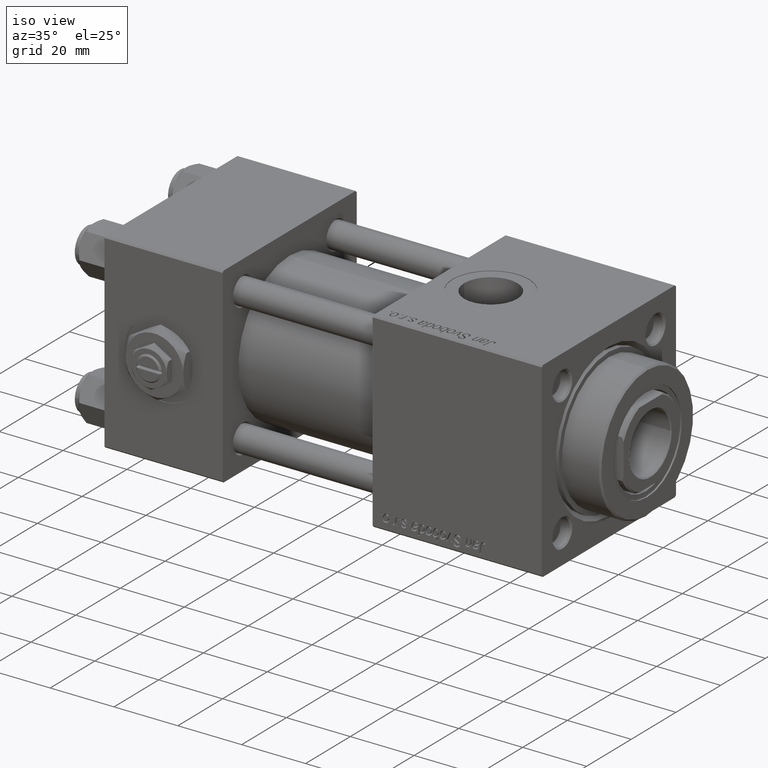
[diagram: clean part render]
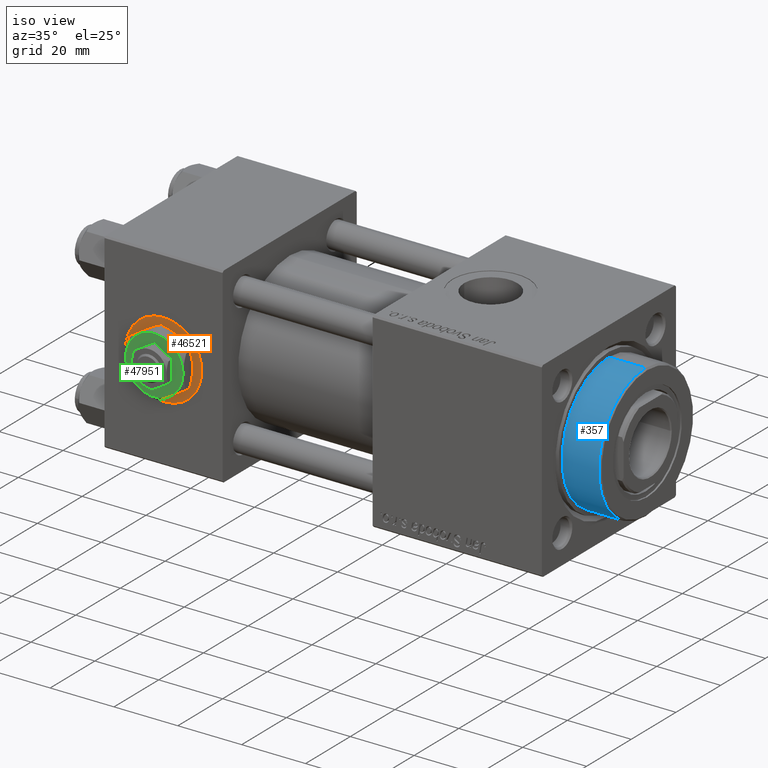
[diagram: same view with three faces highlighted in distinct colors, each labeled with its STEP entity id]
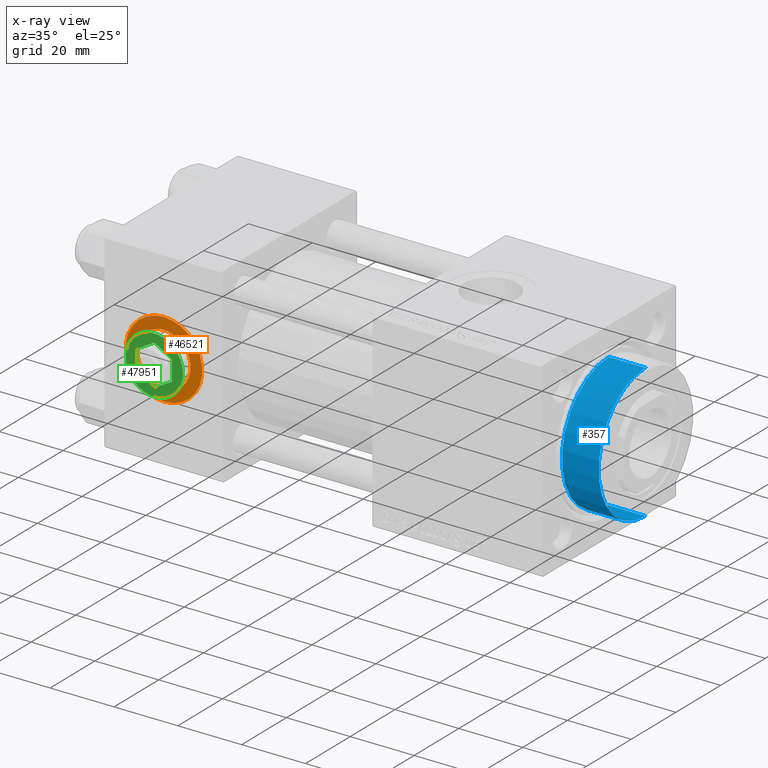
[diagram: x-ray of the same camera — body ghosted, the three highlighted faces saturated]
A machine part, iso view with three faces highlighted in distinct colors.
The next image is the same camera in x-ray (body ghosted, the three faces saturated) — at least one of them is partly hidden behind the body in this view.
Their STEP definitions:

[orange] entity #46521 — the highlighted planar face has unit normal (0, -1, -0).
#2183 = CARTESIAN_POINT ( 'NONE',  ( 18.50000000000000000, -29.80000000000000071, 12.00000000000000178 ) ) ;
#2343 = DIRECTION ( 'NONE',  ( 0.000000000000000000, -1.000000000000000000, -8.673617379884036705E-17 ) ) ;
#3636 = VERTEX_POINT ( 'NONE', #2183 ) ;
#4074 = EDGE_CURVE ( 'NONE', #5198, #20971, #39142, .T. ) ;
#4298 = CARTESIAN_POINT ( 'NONE',  ( 18.50000000000000000, -29.80000000000000071, 1.734723475976807403E-17 ) ) ;
#4661 = DIRECTION ( 'NONE',  ( 0.000000000000000000, -1.000000000000000000, -8.673617379884036705E-17 ) ) ;
#5198 = VERTEX_POINT ( 'NONE', #27272 ) ;
#5325 = DIRECTION ( 'NONE',  ( 0.000000000000000000, 0.000000000000000000, -1.000000000000000000 ) ) ;
#5901 = AXIS2_PLACEMENT_3D ( 'NONE', #52335, #2343, #20496 ) ;
#6946 = CARTESIAN_POINT ( 'NONE',  ( 18.50000000000000000, -29.80000000000000071, 8.330000000000001847 ) ) ;
#8747 = CIRCLE ( 'NONE', #38245, 12.00000000000000178 ) ;
#9145 = CARTESIAN_POINT ( 'NONE',  ( 18.50000000000000000, -29.80000000000000071, 1.734723475976807403E-17 ) ) ;
#9798 = CARTESIAN_POINT ( 'NONE',  ( 18.50000000000000000, -29.80000000000000071, 1.734723475976808635E-17 ) ) ;
#10018 = EDGE_CURVE ( 'NONE', #41739, #3636, #8747, .T. ) ;
#10966 = AXIS2_PLACEMENT_3D ( 'NONE', #4298, #44774, #16529 ) ;
#15568 = ORIENTED_EDGE ( 'NONE', *, *, #21841, .T. ) ;
#16529 = DIRECTION ( 'NONE',  ( 0.000000000000000000, 8.673617379884036705E-17, -1.000000000000000000 ) ) ;
#20496 = DIRECTION ( 'NONE',  ( 0.000000000000000000, 0.000000000000000000, -1.000000000000000000 ) ) ;
#20971 = VERTEX_POINT ( 'NONE', #6946 ) ;
#21841 = EDGE_CURVE ( 'NONE', #3636, #41739, #43682, .T. ) ;
#22394 = CARTESIAN_POINT ( 'NONE',  ( 18.50000000000000000, -29.80000000000000071, 1.734723475976807403E-17 ) ) ;
#22809 = DIRECTION ( 'NONE',  ( 0.000000000000000000, 0.000000000000000000, -1.000000000000000000 ) ) ;
#27272 = CARTESIAN_POINT ( 'NONE',  ( 18.50000000000000000, -29.80000000000000071, -8.330000000000001847 ) ) ;
#27925 = DIRECTION ( 'NONE',  ( 0.000000000000000000, -1.000000000000000000, -8.673617379884036705E-17 ) ) ;
#32594 = EDGE_CURVE ( 'NONE', #20971, #5198, #51491, .T. ) ;
#34947 = ORIENTED_EDGE ( 'NONE', *, *, #4074, .F. ) ;
#35676 = ORIENTED_EDGE ( 'NONE', *, *, #10018, .T. ) ;
#38245 = AXIS2_PLACEMENT_3D ( 'NONE', #9145, #4661, #22809 ) ;
#39142 = CIRCLE ( 'NONE', #41031, 8.330000000000001847 ) ;
#40539 = DIRECTION ( 'NONE',  ( 0.000000000000000000, 0.000000000000000000, -1.000000000000000000 ) ) ;
#40669 = EDGE_LOOP ( 'NONE', ( #34947, #53525 ) ) ;
#41031 = AXIS2_PLACEMENT_3D ( 'NONE', #9798, #27925, #5325 ) ;
#41739 = VERTEX_POINT ( 'NONE', #45503 ) ;
#43682 = CIRCLE ( 'NONE', #58890, 12.00000000000000178 ) ;
#44774 = DIRECTION ( 'NONE',  ( 0.000000000000000000, -1.000000000000000000, -8.673617379884036705E-17 ) ) ;
#45078 = PLANE ( 'NONE',  #10966 ) ;
#45503 = CARTESIAN_POINT ( 'NONE',  ( 18.50000000000000000, -29.80000000000000071, -12.00000000000000178 ) ) ;
#46521 = ADVANCED_FACE ( 'NONE', ( #53735, #52852 ), #45078, .T. ) ;
#51491 = CIRCLE ( 'NONE', #5901, 8.330000000000001847 ) ;
#52335 = CARTESIAN_POINT ( 'NONE',  ( 18.50000000000000000, -29.80000000000000071, 1.734723475976808635E-17 ) ) ;
#52852 = FACE_OUTER_BOUND ( 'NONE', #58063, .T. ) ;
#53525 = ORIENTED_EDGE ( 'NONE', *, *, #32594, .F. ) ;
#53735 = FACE_BOUND ( 'NONE', #40669, .T. ) ;
#54240 = DIRECTION ( 'NONE',  ( 0.000000000000000000, -1.000000000000000000, -8.673617379884036705E-17 ) ) ;
#58063 = EDGE_LOOP ( 'NONE', ( #35676, #15568 ) ) ;
#58890 = AXIS2_PLACEMENT_3D ( 'NONE', #22394, #54240, #40539 ) ;

[blue] entity #357 — the highlighted cylindrical surface (partial cylindrical patch) has radius 21 mm, axis along (-1, -0, 0).
#245 = ORIENTED_EDGE ( 'NONE', *, *, #14796, .T. ) ;
#357 = ADVANCED_FACE ( 'NONE', ( #14931 ), #50655, .T. ) ;
#682 = DIRECTION ( 'NONE',  ( 0.000000000000000000, 0.000000000000000000, -1.000000000000000000 ) ) ;
#5727 = AXIS2_PLACEMENT_3D ( 'NONE', #14082, #682, #9618 ) ;
#7028 = CIRCLE ( 'NONE', #36490, 21.00000000000000000 ) ;
#7980 = ORIENTED_EDGE ( 'NONE', *, *, #30977, .F. ) ;
#9618 = DIRECTION ( 'NONE',  ( 1.000000000000000000, 0.000000000000000000, 0.000000000000000000 ) ) ;
#10708 = CARTESIAN_POINT ( 'NONE',  ( -21.00000000000000000, 0.000000000000000000, 40.70000000000000284 ) ) ;
#14082 = CARTESIAN_POINT ( 'NONE',  ( 0.000000000000000000, 0.000000000000000000, 40.19999999999998863 ) ) ;
#14796 = EDGE_CURVE ( 'NONE', #30311, #44944, #7028, .T. ) ;
#14931 = FACE_OUTER_BOUND ( 'NONE', #44008, .T. ) ;
#15908 = VERTEX_POINT ( 'NONE', #52906 ) ;
#16296 = CARTESIAN_POINT ( 'NONE',  ( -21.00000000000000000, 0.000000000000000000, 28.69999999999999929 ) ) ;
#16764 = ORIENTED_EDGE ( 'NONE', *, *, #56652, .T. ) ;
#17246 = VECTOR ( 'NONE', #17963, 1000.000000000000000 ) ;
#17963 = DIRECTION ( 'NONE',  ( -0.000000000000000000, -0.000000000000000000, -1.000000000000000000 ) ) ;
#19218 = VECTOR ( 'NONE', #51478, 1000.000000000000000 ) ;
#22430 = CARTESIAN_POINT ( 'NONE',  ( 21.00000000000000000, 2.571758278209441661E-15, 40.70000000000000284 ) ) ;
#22748 = CARTESIAN_POINT ( 'NONE',  ( 21.00000000000000000, 2.571758278209441661E-15, 28.69999999999999929 ) ) ;
#23501 = LINE ( 'NONE', #10708, #19218 ) ;
#27281 = VERTEX_POINT ( 'NONE', #52526 ) ;
#28671 = EDGE_CURVE ( 'NONE', #27281, #15908, #57121, .T. ) ;
#30311 = VERTEX_POINT ( 'NONE', #16296 ) ;
#30977 = EDGE_CURVE ( 'NONE', #27281, #44944, #35538, .T. ) ;
#35538 = LINE ( 'NONE', #22430, #17246 ) ;
#36490 = AXIS2_PLACEMENT_3D ( 'NONE', #36762, #50450, #57730 ) ;
#36762 = CARTESIAN_POINT ( 'NONE',  ( 0.000000000000000000, 0.000000000000000000, 28.69999999999999929 ) ) ;
#38147 = DIRECTION ( 'NONE',  ( -0.000000000000000000, -0.000000000000000000, -1.000000000000000000 ) ) ;
#42318 = DIRECTION ( 'NONE',  ( -1.000000000000000000, 0.000000000000000000, 0.000000000000000000 ) ) ;
#44008 = EDGE_LOOP ( 'NONE', ( #7980, #45377, #16764, #245 ) ) ;
#44944 = VERTEX_POINT ( 'NONE', #22748 ) ;
#45377 = ORIENTED_EDGE ( 'NONE', *, *, #28671, .T. ) ;
#46475 = CARTESIAN_POINT ( 'NONE',  ( 0.000000000000000000, 0.000000000000000000, 40.70000000000000284 ) ) ;
#50450 = DIRECTION ( 'NONE',  ( 0.000000000000000000, 0.000000000000000000, 1.000000000000000000 ) ) ;
#50655 = CYLINDRICAL_SURFACE ( 'NONE', #54225, 21.00000000000000000 ) ;
#51478 = DIRECTION ( 'NONE',  ( -0.000000000000000000, -0.000000000000000000, -1.000000000000000000 ) ) ;
#52526 = CARTESIAN_POINT ( 'NONE',  ( 21.00000000000000000, 2.571758278209441661E-15, 40.19999999999998863 ) ) ;
#52906 = CARTESIAN_POINT ( 'NONE',  ( -21.00000000000000000, 0.000000000000000000, 40.19999999999998863 ) ) ;
#54225 = AXIS2_PLACEMENT_3D ( 'NONE', #46475, #38147, #42318 ) ;
#56652 = EDGE_CURVE ( 'NONE', #15908, #30311, #23501, .T. ) ;
#57121 = CIRCLE ( 'NONE', #5727, 21.00000000000000000 ) ;
#57730 = DIRECTION ( 'NONE',  ( 1.000000000000000000, 0.000000000000000000, 0.000000000000000000 ) ) ;

[green] entity #47951 — the highlighted planar face has unit normal (0, -1, -0).
#659 = VERTEX_POINT ( 'NONE', #6821 ) ;
#1262 = LINE ( 'NONE', #24450, #23773 ) ;
#1691 = DIRECTION ( 'NONE',  ( 1.000000000000000000, 0.000000000000000000, -0.000000000000000000 ) ) ;
#1776 = VERTEX_POINT ( 'NONE', #39842 ) ;
#2530 = ORIENTED_EDGE ( 'NONE', *, *, #42840, .T. ) ;
#2568 = EDGE_LOOP ( 'NONE', ( #37376, #2530, #19778, #48242, #8317, #14510 ) ) ;
#3865 = CARTESIAN_POINT ( 'NONE',  ( 5.500000000000000888, -3.175426480542940855, 4.299999999999999822 ) ) ;
#4527 = VERTEX_POINT ( 'NONE', #7599 ) ;
#5040 = DIRECTION ( 'NONE',  ( 0.000000000000000000, 0.000000000000000000, 1.000000000000000000 ) ) ;
#5111 = CARTESIAN_POINT ( 'NONE',  ( 5.500000000000000888, -3.175426480542940855, 4.299999999999999822 ) ) ;
#5463 = EDGE_CURVE ( 'NONE', #17024, #32074, #34984, .T. ) ;
#5816 = VERTEX_POINT ( 'NONE', #19399 ) ;
#6645 = ORIENTED_EDGE ( 'NONE', *, *, #22975, .F. ) ;
#6821 = CARTESIAN_POINT ( 'NONE',  ( 8.999999999999998224, 0.000000000000000000, 4.299999999999999822 ) ) ;
#6842 = LINE ( 'NONE', #24983, #51670 ) ;
#7599 = CARTESIAN_POINT ( 'NONE',  ( -9.000000000000000000, 0.000000000000000000, 4.299999999999999822 ) ) ;
#7816 = VERTEX_POINT ( 'NONE', #26462 ) ;
#7856 = DIRECTION ( 'NONE',  ( 1.000000000000000000, 0.000000000000000000, 0.000000000000000000 ) ) ;
#8153 = AXIS2_PLACEMENT_3D ( 'NONE', #10613, #46916, #1691 ) ;
#8260 = DIRECTION ( 'NONE',  ( 1.000000000000000000, 0.000000000000000000, 0.000000000000000000 ) ) ;
#8317 = ORIENTED_EDGE ( 'NONE', *, *, #28202, .T. ) ;
#10520 = EDGE_CURVE ( 'NONE', #47713, #16481, #32115, .T. ) ;
#10613 = CARTESIAN_POINT ( 'NONE',  ( 0.000000000000000000, 0.000000000000000000, 4.299999999999999822 ) ) ;
#10646 = EDGE_CURVE ( 'NONE', #52360, #1776, #29703, .T. ) ;
#13863 = CARTESIAN_POINT ( 'NONE',  ( 4.500000000000000000, 7.794228634059947147, 4.299999999999999822 ) ) ;
#14510 = ORIENTED_EDGE ( 'NONE', *, *, #10646, .T. ) ;
#15593 = AXIS2_PLACEMENT_3D ( 'NONE', #28748, #15670, #29058 ) ;
#15596 = CIRCLE ( 'NONE', #44147, 9.000000000000000000 ) ;
#15670 = DIRECTION ( 'NONE',  ( 0.000000000000000000, 0.000000000000000000, 1.000000000000000000 ) ) ;
#16481 = VERTEX_POINT ( 'NONE', #35102 ) ;
#16941 = LINE ( 'NONE', #44604, #53453 ) ;
#17024 = VERTEX_POINT ( 'NONE', #33074 ) ;
#17071 = CARTESIAN_POINT ( 'NONE',  ( 0.000000000000000000, 0.000000000000000000, 4.299999999999999822 ) ) ;
#18444 = DIRECTION ( 'NONE',  ( 1.000000000000000000, 0.000000000000000000, 0.000000000000000000 ) ) ;
#19399 = CARTESIAN_POINT ( 'NONE',  ( -4.500000000000000000, 7.794228634059947147, 4.299999999999999822 ) ) ;
#19565 = DIRECTION ( 'NONE',  ( 1.000000000000000000, 0.000000000000000000, 0.000000000000000000 ) ) ;
#19778 = ORIENTED_EDGE ( 'NONE', *, *, #41951, .T. ) ;
#20197 = VECTOR ( 'NONE', #58498, 1000.000000000000000 ) ;
#20219 = LINE ( 'NONE', #51471, #22796 ) ;
#22670 = EDGE_CURVE ( 'NONE', #5816, #4527, #58011, .T. ) ;
#22796 = VECTOR ( 'NONE', #33308, 1000.000000000000000 ) ;
#22975 = EDGE_CURVE ( 'NONE', #43125, #17024, #1262, .T. ) ;
#23773 = VECTOR ( 'NONE', #52148, 1000.000000000000114 ) ;
#24450 = CARTESIAN_POINT ( 'NONE',  ( 0.000000000000000000, 6.350852961085883486, 4.299999999999999822 ) ) ;
#24791 = ORIENTED_EDGE ( 'NONE', *, *, #33485, .F. ) ;
#24983 = CARTESIAN_POINT ( 'NONE',  ( -1.343581385738006573E-15, -6.350852961085881709, 4.299999999999999822 ) ) ;
#25200 = DIRECTION ( 'NONE',  ( 0.000000000000000000, 0.000000000000000000, 1.000000000000000000 ) ) ;
#25805 = DIRECTION ( 'NONE',  ( 0.000000000000000000, 0.000000000000000000, 1.000000000000000000 ) ) ;
#26186 = EDGE_LOOP ( 'NONE', ( #6645, #24791, #58128, #54362, #47067, #41938 ) ) ;
#26462 = CARTESIAN_POINT ( 'NONE',  ( -1.343581385738006573E-15, -6.350852961085881709, 4.299999999999999822 ) ) ;
#26560 = EDGE_CURVE ( 'NONE', #32074, #7816, #20219, .T. ) ;
#26943 = CIRCLE ( 'NONE', #39470, 9.000000000000000000 ) ;
#28202 = EDGE_CURVE ( 'NONE', #4527, #52360, #53287, .T. ) ;
#28748 = CARTESIAN_POINT ( 'NONE',  ( 0.000000000000000000, 0.000000000000000000, 4.299999999999999822 ) ) ;
#28752 = PLANE ( 'NONE',  #8153 ) ;
#28754 = AXIS2_PLACEMENT_3D ( 'NONE', #41041, #5040, #18444 ) ;
#29058 = DIRECTION ( 'NONE',  ( 1.000000000000000000, 0.000000000000000000, 0.000000000000000000 ) ) ;
#29703 = CIRCLE ( 'NONE', #28754, 9.000000000000000000 ) ;
#32074 = VERTEX_POINT ( 'NONE', #45572 ) ;
#32115 = LINE ( 'NONE', #3865, #43941 ) ;
#32353 = AXIS2_PLACEMENT_3D ( 'NONE', #38010, #25200, #19565 ) ;
#32872 = DIRECTION ( 'NONE',  ( 0.000000000000000000, 0.000000000000000000, 1.000000000000000000 ) ) ;
#33074 = CARTESIAN_POINT ( 'NONE',  ( -5.500000000000000000, 3.175426480542941743, 4.299999999999999822 ) ) ;
#33219 = FACE_OUTER_BOUND ( 'NONE', #2568, .T. ) ;
#33308 = DIRECTION ( 'NONE',  ( 0.8660254037844387076, -0.4999999999999998890, 0.000000000000000000 ) ) ;
#33485 = EDGE_CURVE ( 'NONE', #16481, #43125, #16941, .T. ) ;
#34984 = LINE ( 'NONE', #45095, #20197 ) ;
#35087 = DIRECTION ( 'NONE',  ( 0.8660254037844388186, 0.4999999999999997224, 0.000000000000000000 ) ) ;
#35102 = CARTESIAN_POINT ( 'NONE',  ( 5.499999999999999112, 3.175426480542943075, 4.299999999999999822 ) ) ;
#35332 = CARTESIAN_POINT ( 'NONE',  ( 0.000000000000000000, 0.000000000000000000, 4.299999999999999822 ) ) ;
#36089 = DIRECTION ( 'NONE',  ( 0.000000000000000000, 0.000000000000000000, 1.000000000000000000 ) ) ;
#36289 = DIRECTION ( 'NONE',  ( -2.731481088613017227E-16, 1.000000000000000000, 0.000000000000000000 ) ) ;
#37376 = ORIENTED_EDGE ( 'NONE', *, *, #38731, .T. ) ;
#37783 = EDGE_CURVE ( 'NONE', #7816, #47713, #6842, .T. ) ;
#38010 = CARTESIAN_POINT ( 'NONE',  ( 0.000000000000000000, 0.000000000000000000, 4.299999999999999822 ) ) ;
#38731 = EDGE_CURVE ( 'NONE', #1776, #659, #15596, .T. ) ;
#39470 = AXIS2_PLACEMENT_3D ( 'NONE', #35332, #25805, #8260 ) ;
#39700 = VERTEX_POINT ( 'NONE', #13863 ) ;
#39842 = CARTESIAN_POINT ( 'NONE',  ( 4.499999999999997335, -7.794228634059948035, 4.299999999999999822 ) ) ;
#41041 = CARTESIAN_POINT ( 'NONE',  ( 0.000000000000000000, 0.000000000000000000, 4.299999999999999822 ) ) ;
#41938 = ORIENTED_EDGE ( 'NONE', *, *, #5463, .F. ) ;
#41951 = EDGE_CURVE ( 'NONE', #39700, #5816, #26943, .T. ) ;
#42840 = EDGE_CURVE ( 'NONE', #659, #39700, #49825, .T. ) ;
#43125 = VERTEX_POINT ( 'NONE', #49254 ) ;
#43290 = DIRECTION ( 'NONE',  ( 1.000000000000000000, 0.000000000000000000, 0.000000000000000000 ) ) ;
#43765 = AXIS2_PLACEMENT_3D ( 'NONE', #56408, #32872, #43290 ) ;
#43941 = VECTOR ( 'NONE', #36289, 1000.000000000000000 ) ;
#44147 = AXIS2_PLACEMENT_3D ( 'NONE', #17071, #36089, #7856 ) ;
#44604 = CARTESIAN_POINT ( 'NONE',  ( 5.499999999999999112, 3.175426480542943075, 4.299999999999999822 ) ) ;
#45095 = CARTESIAN_POINT ( 'NONE',  ( -5.500000000000000000, 3.175426480542941743, 4.299999999999999822 ) ) ;
#45572 = CARTESIAN_POINT ( 'NONE',  ( -5.500000000000000000, -3.175426480542942187, 4.299999999999999822 ) ) ;
#46916 = DIRECTION ( 'NONE',  ( 0.000000000000000000, 0.000000000000000000, 1.000000000000000000 ) ) ;
#47067 = ORIENTED_EDGE ( 'NONE', *, *, #26560, .F. ) ;
#47713 = VERTEX_POINT ( 'NONE', #5111 ) ;
#47951 = ADVANCED_FACE ( 'NONE', ( #33219, #51385 ), #28752, .T. ) ;
#48242 = ORIENTED_EDGE ( 'NONE', *, *, #22670, .T. ) ;
#48761 = CARTESIAN_POINT ( 'NONE',  ( -4.499999999999998224, -7.794228634059947147, 4.299999999999999822 ) ) ;
#49254 = CARTESIAN_POINT ( 'NONE',  ( 0.000000000000000000, 6.350852961085883486, 4.299999999999999822 ) ) ;
#49825 = CIRCLE ( 'NONE', #15593, 9.000000000000000000 ) ;
#50457 = DIRECTION ( 'NONE',  ( -0.8660254037844387076, 0.4999999999999999445, 0.000000000000000000 ) ) ;
#51385 = FACE_BOUND ( 'NONE', #26186, .T. ) ;
#51471 = CARTESIAN_POINT ( 'NONE',  ( -5.500000000000000000, -3.175426480542942187, 4.299999999999999822 ) ) ;
#51670 = VECTOR ( 'NONE', #35087, 1000.000000000000000 ) ;
#52148 = DIRECTION ( 'NONE',  ( -0.8660254037844385966, -0.4999999999999999445, 0.000000000000000000 ) ) ;
#52360 = VERTEX_POINT ( 'NONE', #48761 ) ;
#53287 = CIRCLE ( 'NONE', #32353, 9.000000000000000000 ) ;
#53453 = VECTOR ( 'NONE', #50457, 1000.000000000000000 ) ;
#54362 = ORIENTED_EDGE ( 'NONE', *, *, #37783, .F. ) ;
#56408 = CARTESIAN_POINT ( 'NONE',  ( 0.000000000000000000, 0.000000000000000000, 4.299999999999999822 ) ) ;
#58011 = CIRCLE ( 'NONE', #43765, 9.000000000000000000 ) ;
#58128 = ORIENTED_EDGE ( 'NONE', *, *, #10520, .F. ) ;
#58498 = DIRECTION ( 'NONE',  ( 0.000000000000000000, -1.000000000000000000, 0.000000000000000000 ) ) ;